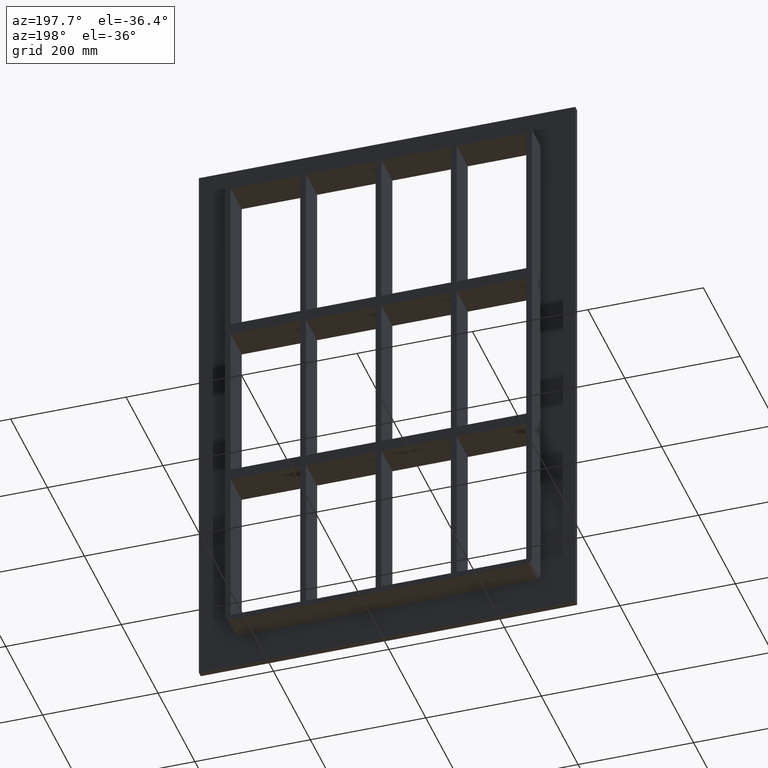
[diagram: clean part render]
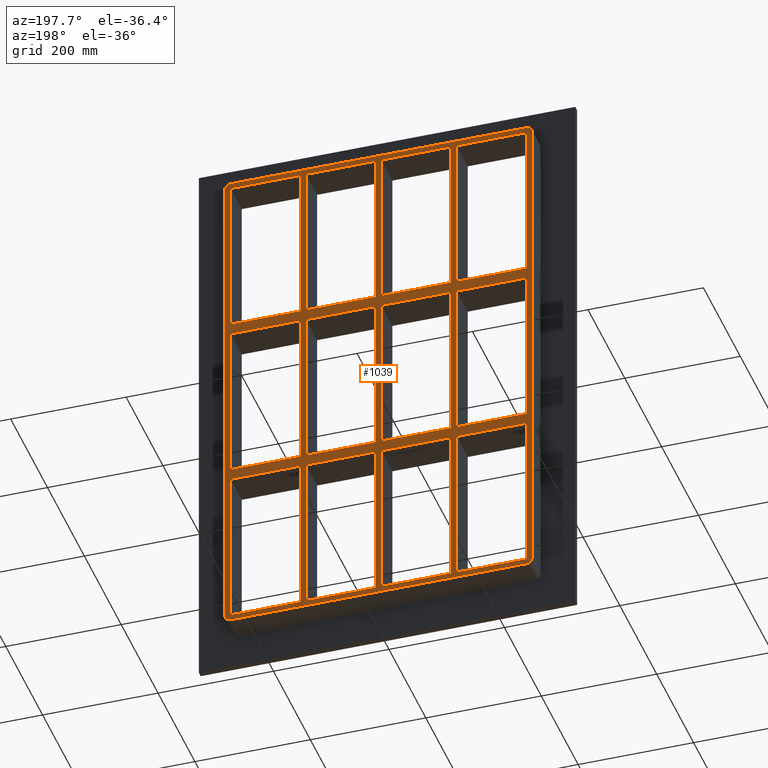
[diagram: same view with one face highlighted and labeled with its STEP entity id]
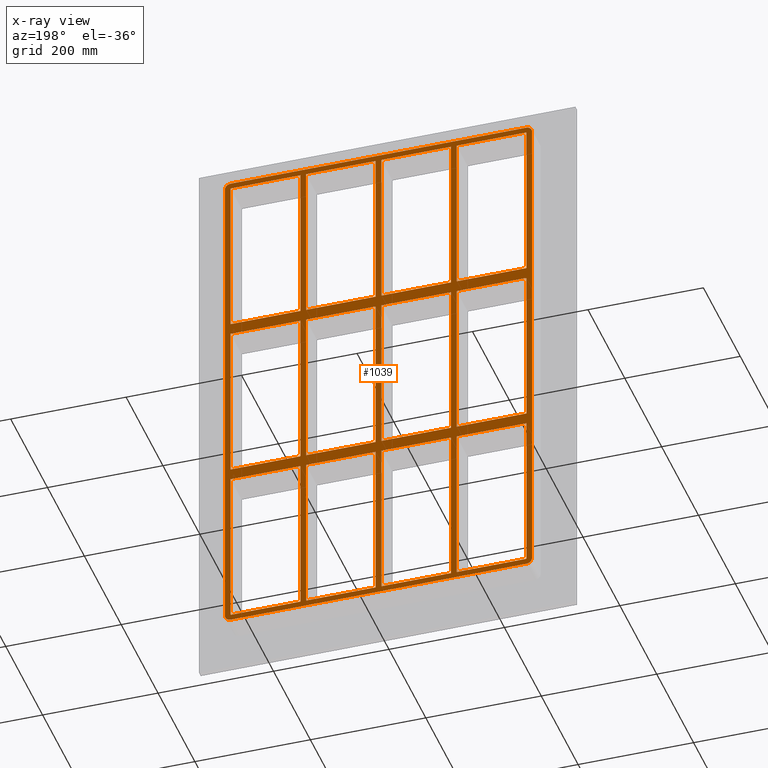
[diagram: x-ray of the same camera — body ghosted, the highlighted face saturated]
A machine part, auxiliary view. The second image highlights one B-rep face of the part: STEP entity #1039.
The next image is the same camera in x-ray: the body ghosted, the highlighted face saturated — about 0% of this face is hidden behind the body in this view.
In plain terms, the highlighted planar face has unit normal (0, 1, 0).
Its self-contained STEP definition (entity closure, byte-faithful):
#75=CARTESIAN_POINT('',(-135.50000000000136,57.0,138.99999999999062));
#76=VERTEX_POINT('',#75);
#91=CARTESIAN_POINT('',(-255.99999999999969,57.0,138.99999999999056));
#92=VERTEX_POINT('',#91);
#99=CARTESIAN_POINT('',(-135.50000000000136,57.0,138.99999999999059));
#100=DIRECTION('',(-1.0,0.0,0.0));
#101=VECTOR('',#100,120.49999999999829);
#102=LINE('',#99,#101);
#103=EDGE_CURVE('',#76,#92,#102,.T.);
#115=CARTESIAN_POINT('',(-5.000000000001386,57.0,138.99999999999062));
#116=VERTEX_POINT('',#115);
#131=CARTESIAN_POINT('',(-125.49999999999272,57.0,138.99999999999062));
#132=VERTEX_POINT('',#131);
#139=CARTESIAN_POINT('',(-5.000000000001364,57.0,138.99999999999059));
#140=DIRECTION('',(-1.0,0.0,0.0));
#141=VECTOR('',#140,120.49999999999136);
#142=LINE('',#139,#141);
#143=EDGE_CURVE('',#116,#132,#142,.T.);
#153=CARTESIAN_POINT('',(135.50000000000728,57.0,138.99999999999065));
#154=VERTEX_POINT('',#153);
#163=CARTESIAN_POINT('',(256.00000000000358,57.0,138.99999999999065));
#164=VERTEX_POINT('',#163);
#165=CARTESIAN_POINT('',(256.00000000000364,57.0,138.99999999999065));
#166=DIRECTION('',(-1.0,0.0,0.0));
#167=VECTOR('',#166,120.49999999999636);
#168=LINE('',#165,#167);
#169=EDGE_CURVE('',#164,#154,#168,.T.);
#195=CARTESIAN_POINT('',(125.49999999999864,57.0,138.99999999999065));
#196=VERTEX_POINT('',#195);
#211=CARTESIAN_POINT('',(5.000000000007283,57.0,138.99999999999062));
#212=VERTEX_POINT('',#211);
#219=CARTESIAN_POINT('',(125.49999999999864,57.0,138.99999999999062));
#220=DIRECTION('',(-1.0,0.0,0.0));
#221=VECTOR('',#220,120.49999999999136);
#222=LINE('',#219,#221);
#223=EDGE_CURVE('',#196,#212,#222,.T.);
#233=CARTESIAN_POINT('',(-135.50000000000136,57.0,158.99999999999991));
#234=VERTEX_POINT('',#233);
#243=CARTESIAN_POINT('',(-255.99999999999969,57.0,158.99999999999994));
#244=VERTEX_POINT('',#243);
#245=CARTESIAN_POINT('',(-255.99999999999969,57.0,158.99999999999994));
#246=DIRECTION('',(1.0,0.0,0.0));
#247=VECTOR('',#246,120.49999999999832);
#248=LINE('',#245,#247);
#249=EDGE_CURVE('',#244,#234,#248,.T.);
#275=CARTESIAN_POINT('',(135.50000000000733,57.0,158.99999999999994));
#276=VERTEX_POINT('',#275);
#291=CARTESIAN_POINT('',(255.99999999999991,57.0,158.99999999999994));
#292=VERTEX_POINT('',#291);
#299=CARTESIAN_POINT('',(135.50000000000736,57.0,158.99999999999994));
#300=DIRECTION('',(1.0,0.0,0.0));
#301=VECTOR('',#300,120.49999999999255);
#302=LINE('',#299,#301);
#303=EDGE_CURVE('',#276,#292,#302,.T.);
#313=CARTESIAN_POINT('',(-5.000000000001386,57.0,158.99999999999994));
#314=VERTEX_POINT('',#313);
#323=CARTESIAN_POINT('',(-125.49999999999272,57.0,158.99999999999994));
#324=VERTEX_POINT('',#323);
#325=CARTESIAN_POINT('',(-125.49999999999272,57.0,158.99999999999994));
#326=DIRECTION('',(1.0,0.0,0.0));
#327=VECTOR('',#326,120.49999999999133);
#328=LINE('',#325,#327);
#329=EDGE_CURVE('',#324,#314,#328,.T.);
#353=CARTESIAN_POINT('',(125.49999999999858,57.0,158.99999999999994));
#354=VERTEX_POINT('',#353);
#363=CARTESIAN_POINT('',(5.000000000007283,57.0,158.99999999999994));
#364=VERTEX_POINT('',#363);
#365=CARTESIAN_POINT('',(5.000000000007304,57.0,158.99999999999994));
#366=DIRECTION('',(1.0,0.0,0.0));
#367=VECTOR('',#366,120.4999999999913);
#368=LINE('',#365,#367);
#369=EDGE_CURVE('',#364,#354,#368,.T.);
#394=CARTESIAN_POINT('',(-256.0,57.0,437.0));
#395=VERTEX_POINT('',#394);
#396=CARTESIAN_POINT('',(-256.0,57.0,437.00000000000011));
#397=DIRECTION('',(0.0,0.0,-1.0));
#398=VECTOR('',#397,278.00000000000011);
#399=LINE('',#396,#398);
#400=EDGE_CURVE('',#395,#244,#399,.T.);
#425=CARTESIAN_POINT('',(255.99999999999991,57.0,-139.00000000000006));
#426=VERTEX_POINT('',#425);
#427=CARTESIAN_POINT('',(256.0,57.0,-139.00000000000006));
#428=DIRECTION('',(0.0,0.0,1.0));
#429=VECTOR('',#428,277.99999999999068);
#430=LINE('',#427,#429);
#431=EDGE_CURVE('',#426,#164,#430,.T.);
#464=CARTESIAN_POINT('',(256.0,57.0,437.0));
#465=VERTEX_POINT('',#464);
#472=CARTESIAN_POINT('',(256.0,57.0,158.99999999999994));
#473=DIRECTION('',(0.0,0.0,1.0));
#474=VECTOR('',#473,278.00000000000006);
#475=LINE('',#472,#474);
#476=EDGE_CURVE('',#292,#465,#475,.T.);
#495=CARTESIAN_POINT('',(125.49999999999861,57.0,437.0));
#496=VERTEX_POINT('',#495);
#503=CARTESIAN_POINT('',(125.49999999999864,57.0,159.0));
#504=DIRECTION('',(0.0,0.0,1.0));
#505=VECTOR('',#504,278.0);
#506=LINE('',#503,#505);
#507=EDGE_CURVE('',#354,#496,#506,.T.);
#518=CARTESIAN_POINT('',(135.50000000000728,57.0,437.0));
#519=VERTEX_POINT('',#518);
#520=CARTESIAN_POINT('',(135.50000000000728,57.0,437.0));
#521=DIRECTION('',(0.0,0.0,-1.0));
#522=VECTOR('',#521,278.00000000000006);
#523=LINE('',#520,#522);
#524=EDGE_CURVE('',#519,#276,#523,.T.);
#557=CARTESIAN_POINT('',(-5.000000000001403,57.0,437.0));
#558=VERTEX_POINT('',#557);
#565=CARTESIAN_POINT('',(-5.000000000001375,57.0,159.0));
#566=DIRECTION('',(0.0,0.0,1.0));
#567=VECTOR('',#566,278.0);
#568=LINE('',#565,#567);
#569=EDGE_CURVE('',#314,#558,#568,.T.);
#580=CARTESIAN_POINT('',(5.000000000007283,57.0,437.0));
#581=VERTEX_POINT('',#580);
#582=CARTESIAN_POINT('',(5.000000000007283,57.0,437.0));
#583=DIRECTION('',(0.0,0.0,-1.0));
#584=VECTOR('',#583,278.00000000000006);
#585=LINE('',#582,#584);
#586=EDGE_CURVE('',#581,#364,#585,.T.);
#619=CARTESIAN_POINT('',(-135.50000000000142,57.0,437.0));
#620=VERTEX_POINT('',#619);
#627=CARTESIAN_POINT('',(-135.50000000000136,57.0,159.0));
#628=DIRECTION('',(0.0,0.0,1.0));
#629=VECTOR('',#628,278.0);
#630=LINE('',#627,#629);
#631=EDGE_CURVE('',#234,#620,#630,.T.);
#642=CARTESIAN_POINT('',(-135.50000000000136,57.0,-139.00000000000006));
#643=VERTEX_POINT('',#642);
#644=CARTESIAN_POINT('',(-135.50000000000134,57.0,-139.0));
#645=DIRECTION('',(0.0,0.0,1.0));
#646=VECTOR('',#645,277.99999999999068);
#647=LINE('',#644,#646);
#648=EDGE_CURVE('',#643,#76,#647,.T.);
#673=CARTESIAN_POINT('',(-125.49999999999272,57.0,437.0));
#674=VERTEX_POINT('',#673);
#675=CARTESIAN_POINT('',(-125.49999999999272,57.0,437.0));
#676=DIRECTION('',(0.0,0.0,-1.0));
#677=VECTOR('',#676,278.00000000000006);
#678=LINE('',#675,#677);
#679=EDGE_CURVE('',#674,#324,#678,.T.);
#698=CARTESIAN_POINT('',(0.0,57.0,0.0));
#699=DIRECTION('',(0.0,1.0,0.0));
#700=DIRECTION('',(0.0,0.0,1.0));
#701=AXIS2_PLACEMENT_3D('',#698,#699,#700);
#702=PLANE('',#701);
#703=CARTESIAN_POINT('',(256.0,57.0,-447.0));
#704=VERTEX_POINT('',#703);
#705=CARTESIAN_POINT('',(266.0,57.0,-437.0));
#706=VERTEX_POINT('',#705);
#707=CARTESIAN_POINT('',(256.0,57.0,-437.0));
#708=DIRECTION('',(0.0,-1.0,0.0));
#709=DIRECTION('',(0.707106781186547,0.0,-0.707106781186547));
#710=AXIS2_PLACEMENT_3D('',#707,#708,#709);
#711=CIRCLE('',#710,9.999999999999998);
#712=EDGE_CURVE('',#704,#706,#711,.T.);
#713=ORIENTED_EDGE('',*,*,#712,.F.);
#714=CARTESIAN_POINT('',(-256.0,57.0,-447.0));
#715=VERTEX_POINT('',#714);
#716=CARTESIAN_POINT('',(256.0,57.0,-447.0));
#717=DIRECTION('',(-1.0,0.0,0.0));
#718=VECTOR('',#717,512.0);
#719=LINE('',#716,#718);
#720=EDGE_CURVE('',#704,#715,#719,.T.);
#721=ORIENTED_EDGE('',*,*,#720,.T.);
#722=CARTESIAN_POINT('',(-266.0,57.0,-437.0));
#723=VERTEX_POINT('',#722);
#724=CARTESIAN_POINT('',(-256.0,57.0,-437.0));
#725=DIRECTION('',(0.0,-1.0,0.0));
#726=DIRECTION('',(-0.707106781186547,0.0,-0.707106781186547));
#727=AXIS2_PLACEMENT_3D('',#724,#725,#726);
#728=CIRCLE('',#727,9.999999999999998);
#729=EDGE_CURVE('',#723,#715,#728,.T.);
#730=ORIENTED_EDGE('',*,*,#729,.F.);
#731=CARTESIAN_POINT('',(-266.0,57.0,437.0));
#732=VERTEX_POINT('',#731);
#733=CARTESIAN_POINT('',(-266.0,57.0,-437.0));
#734=DIRECTION('',(0.0,0.0,1.0));
#735=VECTOR('',#734,874.0);
#736=LINE('',#733,#735);
#737=EDGE_CURVE('',#723,#732,#736,.T.);
#738=ORIENTED_EDGE('',*,*,#737,.T.);
#739=CARTESIAN_POINT('',(-256.0,57.0,447.0));
#740=VERTEX_POINT('',#739);
#741=CARTESIAN_POINT('',(-256.0,57.0,437.0));
#742=DIRECTION('',(0.0,-1.0,0.0));
#743=DIRECTION('',(-0.707106781186547,0.0,0.707106781186547));
#744=AXIS2_PLACEMENT_3D('',#741,#742,#743);
#745=CIRCLE('',#744,9.999999999999998);
#746=EDGE_CURVE('',#740,#732,#745,.T.);
#747=ORIENTED_EDGE('',*,*,#746,.F.);
#748=CARTESIAN_POINT('',(256.0,57.0,447.0));
#749=VERTEX_POINT('',#748);
#750=CARTESIAN_POINT('',(-256.0,57.0,447.0));
#751=DIRECTION('',(1.0,0.0,0.0));
#752=VECTOR('',#751,512.0);
#753=LINE('',#750,#752);
#754=EDGE_CURVE('',#740,#749,#753,.T.);
#755=ORIENTED_EDGE('',*,*,#754,.T.);
#756=CARTESIAN_POINT('',(266.0,57.0,437.0));
#757=VERTEX_POINT('',#756);
#758=CARTESIAN_POINT('',(256.0,57.0,437.0));
#759=DIRECTION('',(0.0,-1.0,0.0));
#760=DIRECTION('',(0.707106781186547,0.0,0.707106781186547));
#761=AXIS2_PLACEMENT_3D('',#758,#759,#760);
#762=CIRCLE('',#761,9.999999999999998);
#763=EDGE_CURVE('',#757,#749,#762,.T.);
#764=ORIENTED_EDGE('',*,*,#763,.F.);
#765=CARTESIAN_POINT('',(266.0,57.0,437.0));
#766=DIRECTION('',(0.0,0.0,-1.0));
#767=VECTOR('',#766,874.0);
#768=LINE('',#765,#767);
#769=EDGE_CURVE('',#757,#706,#768,.T.);
#770=ORIENTED_EDGE('',*,*,#769,.T.);
#771=EDGE_LOOP('',(#713,#721,#730,#738,#747,#755,#764,#770));
#772=FACE_OUTER_BOUND('',#771,.T.);
#773=CARTESIAN_POINT('',(-255.99999999999969,57.0,-139.00000000000006));
#774=VERTEX_POINT('',#773);
#775=CARTESIAN_POINT('',(-256.0,57.0,138.99999999999062));
#776=DIRECTION('',(0.0,0.0,-1.0));
#777=VECTOR('',#776,277.99999999999068);
#778=LINE('',#775,#777);
#779=EDGE_CURVE('',#92,#774,#778,.T.);
#780=ORIENTED_EDGE('',*,*,#779,.T.);
#781=CARTESIAN_POINT('',(-255.99999999999969,57.0,-139.00000000000006));
#782=DIRECTION('',(1.0,0.0,0.0));
#783=VECTOR('',#782,120.49999999999832);
#784=LINE('',#781,#783);
#785=EDGE_CURVE('',#774,#643,#784,.T.);
#786=ORIENTED_EDGE('',*,*,#785,.T.);
#787=ORIENTED_EDGE('',*,*,#648,.T.);
#788=ORIENTED_EDGE('',*,*,#103,.T.);
#789=EDGE_LOOP('',(#780,#786,#787,#788));
#790=FACE_BOUND('',#789,.T.);
#791=ORIENTED_EDGE('',*,*,#476,.T.);
#792=CARTESIAN_POINT('',(256.00000000000006,57.0,437.0));
#793=DIRECTION('',(-1.0,0.0,0.0));
#794=VECTOR('',#793,120.49999999999278);
#795=LINE('',#792,#794);
#796=EDGE_CURVE('',#465,#519,#795,.T.);
#797=ORIENTED_EDGE('',*,*,#796,.T.);
#798=ORIENTED_EDGE('',*,*,#524,.T.);
#799=ORIENTED_EDGE('',*,*,#303,.T.);
#800=EDGE_LOOP('',(#791,#797,#798,#799));
#801=FACE_BOUND('',#800,.T.);
#802=ORIENTED_EDGE('',*,*,#507,.T.);
#803=CARTESIAN_POINT('',(125.49999999999858,57.0,437.0));
#804=DIRECTION('',(-1.0,0.0,0.0));
#805=VECTOR('',#804,120.4999999999913);
#806=LINE('',#803,#805);
#807=EDGE_CURVE('',#496,#581,#806,.T.);
#808=ORIENTED_EDGE('',*,*,#807,.T.);
#809=ORIENTED_EDGE('',*,*,#586,.T.);
#810=ORIENTED_EDGE('',*,*,#369,.T.);
#811=EDGE_LOOP('',(#802,#808,#809,#810));
#812=FACE_BOUND('',#811,.T.);
#813=ORIENTED_EDGE('',*,*,#569,.T.);
#814=CARTESIAN_POINT('',(-5.000000000001393,57.0,437.0));
#815=DIRECTION('',(-1.0,0.0,0.0));
#816=VECTOR('',#815,120.49999999999133);
#817=LINE('',#814,#816);
#818=EDGE_CURVE('',#558,#674,#817,.T.);
#819=ORIENTED_EDGE('',*,*,#818,.T.);
#820=ORIENTED_EDGE('',*,*,#679,.T.);
#821=ORIENTED_EDGE('',*,*,#329,.T.);
#822=EDGE_LOOP('',(#813,#819,#820,#821));
#823=FACE_BOUND('',#822,.T.);
#824=ORIENTED_EDGE('',*,*,#169,.T.);
#825=CARTESIAN_POINT('',(135.50000000000728,57.0,-139.00000000000006));
#826=VERTEX_POINT('',#825);
#827=CARTESIAN_POINT('',(135.50000000000728,57.0,138.99999999999062));
#828=DIRECTION('',(0.0,0.0,-1.0));
#829=VECTOR('',#828,277.99999999999073);
#830=LINE('',#827,#829);
#831=EDGE_CURVE('',#154,#826,#830,.T.);
#832=ORIENTED_EDGE('',*,*,#831,.T.);
#833=CARTESIAN_POINT('',(135.50000000000736,57.0,-139.00000000000006));
#834=DIRECTION('',(1.0,0.0,0.0));
#835=VECTOR('',#834,120.49999999999255);
#836=LINE('',#833,#835);
#837=EDGE_CURVE('',#826,#426,#836,.T.);
#838=ORIENTED_EDGE('',*,*,#837,.T.);
#839=ORIENTED_EDGE('',*,*,#431,.T.);
#840=EDGE_LOOP('',(#824,#832,#838,#839));
#841=FACE_BOUND('',#840,.T.);
#842=ORIENTED_EDGE('',*,*,#223,.T.);
#843=CARTESIAN_POINT('',(5.000000000007283,57.0,-139.00000000000006));
#844=VERTEX_POINT('',#843);
#845=CARTESIAN_POINT('',(5.000000000007283,57.0,138.99999999999056));
#846=DIRECTION('',(0.0,0.0,-1.0));
#847=VECTOR('',#846,277.99999999999068);
#848=LINE('',#845,#847);
#849=EDGE_CURVE('',#212,#844,#848,.T.);
#850=ORIENTED_EDGE('',*,*,#849,.T.);
#851=CARTESIAN_POINT('',(125.49999999999866,57.0,-139.00000000000006));
#852=VERTEX_POINT('',#851);
#853=CARTESIAN_POINT('',(5.000000000007304,57.0,-139.00000000000006));
#854=DIRECTION('',(1.0,0.0,0.0));
#855=VECTOR('',#854,120.49999999999136);
#856=LINE('',#853,#855);
#857=EDGE_CURVE('',#844,#852,#856,.T.);
#858=ORIENTED_EDGE('',*,*,#857,.T.);
#859=CARTESIAN_POINT('',(125.49999999999866,57.0,-139.0));
#860=DIRECTION('',(0.0,0.0,1.0));
#861=VECTOR('',#860,277.99999999999068);
#862=LINE('',#859,#861);
#863=EDGE_CURVE('',#852,#196,#862,.T.);
#864=ORIENTED_EDGE('',*,*,#863,.T.);
#865=EDGE_LOOP('',(#842,#850,#858,#864));
#866=FACE_BOUND('',#865,.T.);
#867=ORIENTED_EDGE('',*,*,#143,.T.);
#868=CARTESIAN_POINT('',(-125.49999999999272,57.0,-139.00000000000006));
#869=VERTEX_POINT('',#868);
#870=CARTESIAN_POINT('',(-125.49999999999272,57.0,138.99999999999056));
#871=DIRECTION('',(0.0,0.0,-1.0));
#872=VECTOR('',#871,277.99999999999068);
#873=LINE('',#870,#872);
#874=EDGE_CURVE('',#132,#869,#873,.T.);
#875=ORIENTED_EDGE('',*,*,#874,.T.);
#876=CARTESIAN_POINT('',(-5.000000000001345,57.0,-139.00000000000006));
#877=VERTEX_POINT('',#876);
#878=CARTESIAN_POINT('',(-125.49999999999272,57.0,-139.00000000000006));
#879=DIRECTION('',(1.0,0.0,0.0));
#880=VECTOR('',#879,120.49999999999139);
#881=LINE('',#878,#880);
#882=EDGE_CURVE('',#869,#877,#881,.T.);
#883=ORIENTED_EDGE('',*,*,#882,.T.);
#884=CARTESIAN_POINT('',(-5.000000000001345,57.0,-139.0));
#885=DIRECTION('',(0.0,0.0,1.0));
#886=VECTOR('',#885,277.99999999999068);
#887=LINE('',#884,#886);
#888=EDGE_CURVE('',#877,#116,#887,.T.);
#889=ORIENTED_EDGE('',*,*,#888,.T.);
#890=EDGE_LOOP('',(#867,#875,#883,#889));
#891=FACE_BOUND('',#890,.T.);
#892=CARTESIAN_POINT('',(-255.99999999999969,57.0,-159.00000000000944));
#893=VERTEX_POINT('',#892);
#894=CARTESIAN_POINT('',(-256.0,57.0,-437.0));
#895=VERTEX_POINT('',#894);
#896=CARTESIAN_POINT('',(-256.0,57.0,-159.00000000000944));
#897=DIRECTION('',(0.0,0.0,-1.0));
#898=VECTOR('',#897,277.99999999999056);
#899=LINE('',#896,#898);
#900=EDGE_CURVE('',#893,#895,#899,.T.);
#901=ORIENTED_EDGE('',*,*,#900,.T.);
#902=CARTESIAN_POINT('',(-135.50000000000131,57.0,-437.0));
#903=VERTEX_POINT('',#902);
#904=CARTESIAN_POINT('',(-256.00000000000006,57.0,-437.0));
#905=DIRECTION('',(1.0,0.0,0.0));
#906=VECTOR('',#905,120.49999999999875);
#907=LINE('',#904,#906);
#908=EDGE_CURVE('',#895,#903,#907,.T.);
#909=ORIENTED_EDGE('',*,*,#908,.T.);
#910=CARTESIAN_POINT('',(-135.50000000000131,57.0,-159.00000000000941));
#911=VERTEX_POINT('',#910);
#912=CARTESIAN_POINT('',(-135.50000000000131,57.0,-437.0));
#913=DIRECTION('',(0.0,0.0,1.0));
#914=VECTOR('',#913,277.99999999999056);
#915=LINE('',#912,#914);
#916=EDGE_CURVE('',#903,#911,#915,.T.);
#917=ORIENTED_EDGE('',*,*,#916,.T.);
#918=CARTESIAN_POINT('',(-135.50000000000131,57.0,-159.00000000000941));
#919=DIRECTION('',(-1.0,0.0,0.0));
#920=VECTOR('',#919,120.49999999999835);
#921=LINE('',#918,#920);
#922=EDGE_CURVE('',#911,#893,#921,.T.);
#923=ORIENTED_EDGE('',*,*,#922,.T.);
#924=EDGE_LOOP('',(#901,#909,#917,#923));
#925=FACE_BOUND('',#924,.T.);
#926=CARTESIAN_POINT('',(-5.000000000001315,57.0,-437.0));
#927=VERTEX_POINT('',#926);
#928=CARTESIAN_POINT('',(-5.000000000001342,57.0,-159.00000000000941));
#929=VERTEX_POINT('',#928);
#930=CARTESIAN_POINT('',(-5.000000000001315,57.0,-437.0));
#931=DIRECTION('',(0.0,0.0,1.0));
#932=VECTOR('',#931,277.99999999999062);
#933=LINE('',#930,#932);
#934=EDGE_CURVE('',#927,#929,#933,.T.);
#935=ORIENTED_EDGE('',*,*,#934,.T.);
#936=CARTESIAN_POINT('',(-125.49999999999272,57.0,-159.00000000000941));
#937=VERTEX_POINT('',#936);
#938=CARTESIAN_POINT('',(-5.000000000001364,57.0,-159.00000000000941));
#939=DIRECTION('',(-1.0,0.0,0.0));
#940=VECTOR('',#939,120.49999999999136);
#941=LINE('',#938,#940);
#942=EDGE_CURVE('',#929,#937,#941,.T.);
#943=ORIENTED_EDGE('',*,*,#942,.T.);
#944=CARTESIAN_POINT('',(-125.49999999999272,57.0,-436.99999999998408));
#945=VERTEX_POINT('',#944);
#946=CARTESIAN_POINT('',(-125.49999999999272,57.0,-159.00000000000944));
#947=DIRECTION('',(0.0,0.0,-1.0));
#948=VECTOR('',#947,277.99999999997465);
#949=LINE('',#946,#948);
#950=EDGE_CURVE('',#937,#945,#949,.T.);
#951=ORIENTED_EDGE('',*,*,#950,.T.);
#952=CARTESIAN_POINT('',(-125.49999999999272,57.0,-437.0));
#953=DIRECTION('',(1.0,0.0,0.0));
#954=VECTOR('',#953,120.49999999999142);
#955=LINE('',#952,#954);
#956=EDGE_CURVE('',#945,#927,#955,.T.);
#957=ORIENTED_EDGE('',*,*,#956,.T.);
#958=EDGE_LOOP('',(#935,#943,#951,#957));
#959=FACE_BOUND('',#958,.T.);
#960=CARTESIAN_POINT('',(125.49999999999869,57.0,-437.0));
#961=VERTEX_POINT('',#960);
#962=CARTESIAN_POINT('',(125.49999999999866,57.0,-159.00000000000941));
#963=VERTEX_POINT('',#962);
#964=CARTESIAN_POINT('',(125.49999999999869,57.0,-437.0));
#965=DIRECTION('',(0.0,0.0,1.0));
#966=VECTOR('',#965,277.99999999999062);
#967=LINE('',#964,#966);
#968=EDGE_CURVE('',#961,#963,#967,.T.);
#969=ORIENTED_EDGE('',*,*,#968,.T.);
#970=CARTESIAN_POINT('',(5.000000000007283,57.0,-159.00000000000944));
#971=VERTEX_POINT('',#970);
#972=CARTESIAN_POINT('',(125.49999999999866,57.0,-159.00000000000938));
#973=DIRECTION('',(-1.0,0.0,0.0));
#974=VECTOR('',#973,120.49999999999139);
#975=LINE('',#972,#974);
#976=EDGE_CURVE('',#963,#971,#975,.T.);
#977=ORIENTED_EDGE('',*,*,#976,.T.);
#978=CARTESIAN_POINT('',(5.000000000007283,57.0,-436.99999999998408));
#979=VERTEX_POINT('',#978);
#980=CARTESIAN_POINT('',(5.000000000007283,57.0,-159.00000000000944));
#981=DIRECTION('',(0.0,0.0,-1.0));
#982=VECTOR('',#981,277.99999999997465);
#983=LINE('',#980,#982);
#984=EDGE_CURVE('',#971,#979,#983,.T.);
#985=ORIENTED_EDGE('',*,*,#984,.T.);
#986=CARTESIAN_POINT('',(5.000000000007276,57.0,-437.0));
#987=DIRECTION('',(1.0,0.0,0.0));
#988=VECTOR('',#987,120.49999999999142);
#989=LINE('',#986,#988);
#990=EDGE_CURVE('',#979,#961,#989,.T.);
#991=ORIENTED_EDGE('',*,*,#990,.T.);
#992=EDGE_LOOP('',(#969,#977,#985,#991));
#993=FACE_BOUND('',#992,.T.);
#994=ORIENTED_EDGE('',*,*,#249,.T.);
#995=ORIENTED_EDGE('',*,*,#631,.T.);
#996=CARTESIAN_POINT('',(-135.50000000000139,57.0,437.0));
#997=DIRECTION('',(-1.0,0.0,0.0));
#998=VECTOR('',#997,120.49999999999861);
#999=LINE('',#996,#998);
#1000=EDGE_CURVE('',#620,#395,#999,.T.);
#1001=ORIENTED_EDGE('',*,*,#1000,.T.);
#1002=ORIENTED_EDGE('',*,*,#400,.T.);
#1003=EDGE_LOOP('',(#994,#995,#1001,#1002));
#1004=FACE_BOUND('',#1003,.T.);
#1005=CARTESIAN_POINT('',(135.50000000000728,57.0,-436.99999999998408));
#1006=VERTEX_POINT('',#1005);
#1007=CARTESIAN_POINT('',(256.0,57.0,-437.0));
#1008=VERTEX_POINT('',#1007);
#1009=CARTESIAN_POINT('',(135.50000000000728,57.0,-437.0));
#1010=DIRECTION('',(1.0,0.0,0.0));
#1011=VECTOR('',#1010,120.49999999999272);
#1012=LINE('',#1009,#1011);
#1013=EDGE_CURVE('',#1006,#1008,#1012,.T.);
#1014=ORIENTED_EDGE('',*,*,#1013,.T.);
#1015=CARTESIAN_POINT('',(256.00000000000358,57.0,-159.00000000000935));
#1016=VERTEX_POINT('',#1015);
#1017=CARTESIAN_POINT('',(256.0,57.0,-437.00000000000011));
#1018=DIRECTION('',(0.0,0.0,1.0));
#1019=VECTOR('',#1018,277.99999999999073);
#1020=LINE('',#1017,#1019);
#1021=EDGE_CURVE('',#1008,#1016,#1020,.T.);
#1022=ORIENTED_EDGE('',*,*,#1021,.T.);
#1023=CARTESIAN_POINT('',(135.50000000000728,57.0,-159.00000000000938));
#1024=VERTEX_POINT('',#1023);
#1025=CARTESIAN_POINT('',(256.00000000000364,57.0,-159.00000000000935));
#1026=DIRECTION('',(-1.0,0.0,0.0));
#1027=VECTOR('',#1026,120.49999999999636);
#1028=LINE('',#1025,#1027);
#1029=EDGE_CURVE('',#1016,#1024,#1028,.T.);
#1030=ORIENTED_EDGE('',*,*,#1029,.T.);
#1031=CARTESIAN_POINT('',(135.50000000000728,57.0,-159.00000000000944));
#1032=DIRECTION('',(0.0,0.0,-1.0));
#1033=VECTOR('',#1032,277.99999999997465);
#1034=LINE('',#1031,#1033);
#1035=EDGE_CURVE('',#1024,#1006,#1034,.T.);
#1036=ORIENTED_EDGE('',*,*,#1035,.T.);
#1037=EDGE_LOOP('',(#1014,#1022,#1030,#1036));
#1038=FACE_BOUND('',#1037,.T.);
#1039=ADVANCED_FACE('',(#772,#790,#801,#812,#823,#841,#866,#891,#925,#959,#993,#1004,#1038),#702,.T.);